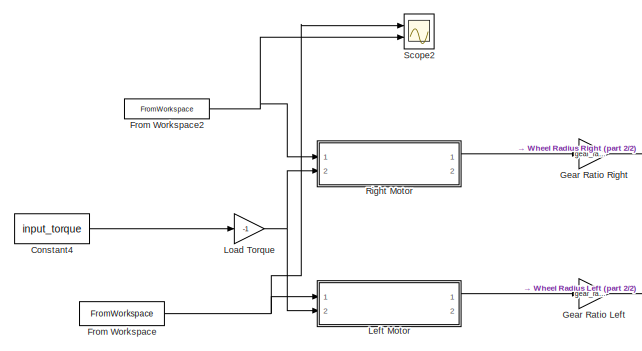
[diagram: root canvas - part 1/2, top left region]
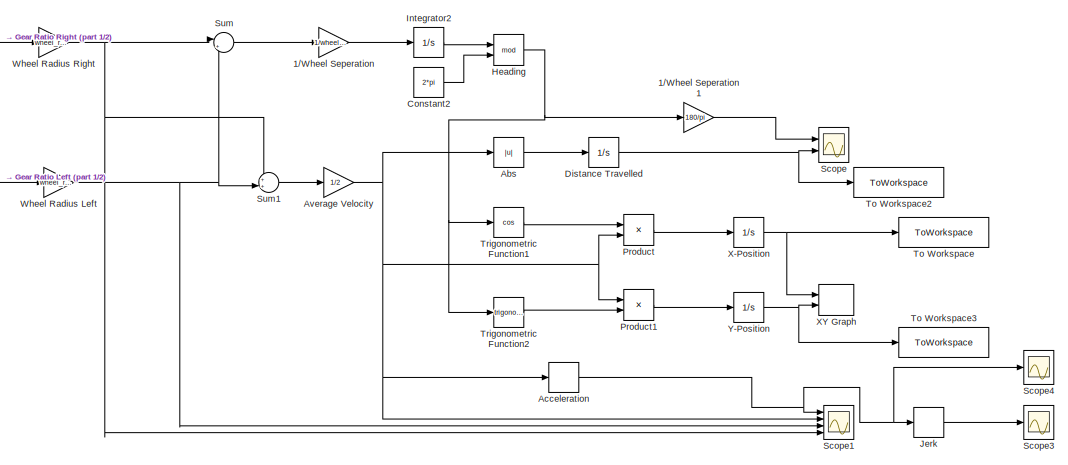
[diagram: root canvas - part 2/2, right side, full height]
MODEL slx_51bef23c6550
KIND model
CONFIG AbsTol = auto
CONFIG EnableMultiTasking = off
CONFIG FixedStep = auto
CONFIG MaxStep = 0.1
CONFIG MinStep = auto
CONFIG RelTol = 1e-3
CONFIG SampleTimeConstraint = Unconstrained
CONFIG SolverName = VariableStepAuto
CONFIG StartTime = 0.0
CONFIG StopTime = 150
BLOCK [Gain] 1//Wheel Seperation
  Gain = 1/wheel_separation
BLOCK [Gain] 1//Wheel Seperation1
  Gain = 180/pi
BLOCK [Abs] Abs
  SaturateOnIntegerOverflow = off
BLOCK [Derivative] Acceleration
BLOCK [Gain] Average Velocity
  Gain = 1/2
BLOCK [Constant] Constant2
  Value = 2*pi
BLOCK [Constant] Constant4
  Value = input_torque
BLOCK [Integrator] Distance Travelled
  Ports = [1, 1]
BLOCK [FromWorkspace] From Workspace
  VariableName = left_motor_voltage
BLOCK [FromWorkspace] From Workspace2
  VariableName = right_motor_voltage
BLOCK [Gain] Gear Ratio Left
  Gain = gear_ratio
BLOCK [Gain] Gear Ratio Right
  Gain = gear_ratio
BLOCK [Math] Heading
  Operator = mod
  Ports = [2, 1]
BLOCK [Integrator] Integrator2
  Ports = [1, 1]
BLOCK [Derivative] Jerk
BLOCK [SubSystem] Left Motor
  PortSchema = {"entries":[{"content":{"sides":[{"content":{"connectorIds":["In2","In1"]},"type":"ConnectorPlacement.EquallySpacedRectSide","uuid":"328afdc4-2910-4488-afe5-6c44e5b70001"},{"content":{"connectorIds":["Out1","Out2"],"side":"RIGHT"},"type":"ConnectorPlacement.EquallySpacedRectSide","uuid":"1cce0780-4cf2-4101-aaba-6ee003d6891f"},{"content":{"connectorIds":[],"side":"TOP"},"type":"ConnectorPlacement.E...<+253ch>
  Ports = [2, 2]
  ReferencedSubsystem = DCMotorModel
  RequestExecContextInheritance = off
BLOCK [Gain] Load Torque
  Gain = -1
BLOCK [Product] Product
  Ports = [2, 1]
BLOCK [Product] Product1
  Ports = [2, 1]
BLOCK [SubSystem] Right Motor
  Ports = [2, 2]
  ReferencedSubsystem = DCMotorModel
  RequestExecContextInheritance = off
BLOCK [Scope] Scope
  Floating = off
  NumInputPorts = 2
  Ports = [2]
  ScopeSpecificationString = Simulink.scopes.TimeScopeBlockCfg('CurrentConfiguration', extmgr.ConfigurationSet(extmgr.Configuration('Core','General UI',true),extmgr.Configuration('Core','Source UI',true),extmgr.Configuration('Sources','WiredSimulink',true),extmgr.Configuration('Visuals','Time Domain',true,'SerializedDisplays',{struct('MinYLimReal','-4.76585','MaxYLimReal','16.17083','YLabelReal','','MinYLimMag','0.00000','Max...<+1889ch>
BLOCK [Scope] Scope1
  Floating = off
  NumInputPorts = 4
  Ports = [4]
  ScopeSpecificationString = Simulink.scopes.TimeScopeBlockCfg('CurrentConfiguration', extmgr.ConfigurationSet(extmgr.Configuration('Core','General UI',true),extmgr.Configuration('Core','Source UI',true),extmgr.Configuration('Sources','WiredSimulink',true,'DataLoggingVariableName','ScopeData1'),extmgr.Configuration('Visuals','Time Domain',true,'SerializedDisplays',{struct('MinYLimReal','-0.62747','MaxYLimReal','0.62747','YLab...<+1905ch>
BLOCK [Scope] Scope2
  Floating = off
  NumInputPorts = 2
  Ports = [2]
  ScopeSpecificationString = Simulink.scopes.TimeScopeBlockCfg('CurrentConfiguration', extmgr.ConfigurationSet(extmgr.Configuration('Core','General UI',true),extmgr.Configuration('Core','Source UI',true),extmgr.Configuration('Sources','WiredSimulink',true,'DataLoggingVariableName','ScopeData1'),extmgr.Configuration('Visuals','Time Domain',true,'SerializedDisplays',{struct('MinYLimReal','-30.00000','MaxYLimReal','30.00000','YL...<+1618ch>
BLOCK [Scope] Scope3
  Floating = off
  NumInputPorts = 1
  Ports = [1]
  ScopeSpecificationString = Simulink.scopes.TimeScopeBlockCfg('CurrentConfiguration', extmgr.ConfigurationSet(extmgr.Configuration('Core','General UI',true),extmgr.Configuration('Core','Source UI',true),extmgr.Configuration('Sources','WiredSimulink',true,'DataLoggingVariableName','ScopeData1'),extmgr.Configuration('Visuals','Time Domain',true,'SerializedDisplays',{struct('MinYLimReal','-1094713344.00000','MaxYLimReal','96049...<+1648ch>
BLOCK [Scope] Scope4
  Floating = off
  NumInputPorts = 1
  Ports = [1]
  ScopeSpecificationString = Simulink.scopes.TimeScopeBlockCfg('CurrentConfiguration', extmgr.ConfigurationSet(extmgr.Configuration('Core','General UI',true),extmgr.Configuration('Core','Source UI',true),extmgr.Configuration('Sources','WiredSimulink',true,'DataLoggingVariableName','ScopeData2'),extmgr.Configuration('Visuals','Time Domain',true,'SerializedDisplays',{struct('MinYLimReal','-0.09452','MaxYLimReal','0.08471','YLab...<+1578ch>
BLOCK [Sum] Sum
  Inputs = |+-
  Ports = [2, 1]
BLOCK [Sum] Sum1
  Inputs = ++|
  Ports = [2, 1]
BLOCK [ToWorkspace] To Workspace
  FixptAsFi = on
  MaxDataPoints = inf
  Ports = [1]
  SampleTime = -1
  SaveFormat = Timeseries
  VariableName = xpos
BLOCK [ToWorkspace] To Workspace2
  FixptAsFi = on
  MaxDataPoints = inf
  Ports = [1]
  SampleTime = -1
  SaveFormat = Timeseries
  VariableName = dis_travelled
BLOCK [ToWorkspace] To Workspace3
  FixptAsFi = on
  MaxDataPoints = inf
  Ports = [1]
  SampleTime = -1
  SaveFormat = Timeseries
  VariableName = ypos
BLOCK [Trigonometry] Trigonometric Function1
  Operator = cos
  Ports = [1, 1]
BLOCK [Trigonometry] Trigonometric Function2
  Ports = [1, 1]
BLOCK [Gain] Wheel Radius Left
  Gain = wheel_radius
BLOCK [Gain] Wheel Radius Right
  Gain = wheel_radius
BLOCK [Integrator] X-Position
  Ports = [1, 1]
BLOCK [Record] XY Graph
  CompatibilityTag = XY
  FileSettingsInternal = {"entries":[{"content":{"excelSettings":{"content":{},"type":"Streamout.ExcelSettings"}},"type":"Streamout.FileSettingStorage","uuid":"e26741fe-eae2-40bf-bd9c-fd7d33f4577c"}],"packageUris":["http://schema.mathworks.com/mf0/streamout_blocks/R2020a"],"version":"1.0"}
  Layout = [1 1]
  Ports = [2]
  SignalsInternal = {"entries":[{"content":{"signals":[{"content":{"blockPath":["WheelDriveModel/XY Graph"],"channel":[],"dimensions":[1],"domain":"WheelDriveModel/XY Graph","lineColor":"#a2142f","plots":[1],"port":1,"sid":[""],"signalID":616,"signalName":"X-Position"},"type":"RecordBlkView.Signal","uuid":"c2fe91a7-6c84-4ac7-a483-8e6a1d3ef39a"},{"content":{"blockPath":["WheelDriveModel/XY Graph"],"channel":[],"dimens...<+395ch>
  VisualizationBindings = {"xyplotplugin":{"info":[{"series":[{"bindingParametersList":[{"parameter":"X-Axis","signalID":616,"signalName":"X-Position"},{"parameter":"Y-Axis","signalID":620,"signalName":"Y-Position"}],"seriesID":6404}],"subplotID":1}]}}
BLOCK [Integrator] Y-Position
  Ports = [1, 1]
LINE 1//Wheel Seperation1:1 -> Scope:1
LINE 1//Wheel Seperation:1 -> Integrator2:1
LINE Abs:1 -> Distance Travelled:1
NET Acceleration:1 -> Jerk:1, Scope1:1, Scope4:1
NET Average Velocity:1 -> Abs:1, Acceleration:1, Product1:1, Product:2, Scope1:2
LINE Constant2:1 -> Heading:2
LINE Constant4:1 -> Load Torque:1
NET Distance Travelled:1 -> Scope:2, To Workspace2:1
NET From Workspace2:1 -> Right Motor:1, Scope2:2
NET From Workspace:1 -> Left Motor:1, Scope2:1
LINE Gear Ratio Left:1 -> Wheel Radius Left:1
LINE Gear Ratio Right:1 -> Wheel Radius Right:1
NET Heading:1 -> 1//Wheel Seperation1:1, Trigonometric Function1:1, Trigonometric Function2:1
LINE Integrator2:1 -> Heading:1
LINE Jerk:1 -> Scope3:1
LINE Left Motor:1 -> Gear Ratio Left:1
NET Load Torque:1 -> Left Motor:2, Right Motor:2
LINE Product1:1 -> Y-Position:1
LINE Product:1 -> X-Position:1
LINE Right Motor:1 -> Gear Ratio Right:1
LINE Sum1:1 -> Average Velocity:1
LINE Sum:1 -> 1//Wheel Seperation:1
LINE Trigonometric Function1:1 -> Product:1
LINE Trigonometric Function2:1 -> Product1:2
NET Wheel Radius Left:1 -> Scope1:3, Sum1:2, Sum:2
NET Wheel Radius Right:1 -> Scope1:4, Sum1:1, Sum:1
NET X-Position:1 -> To Workspace:1, XY Graph:1
NET Y-Position:1 -> To Workspace3:1, XY Graph:2
note: NET lines group one-source signal fan-out (src -> all destinations, sorted); 1:1 wires keep LINE
